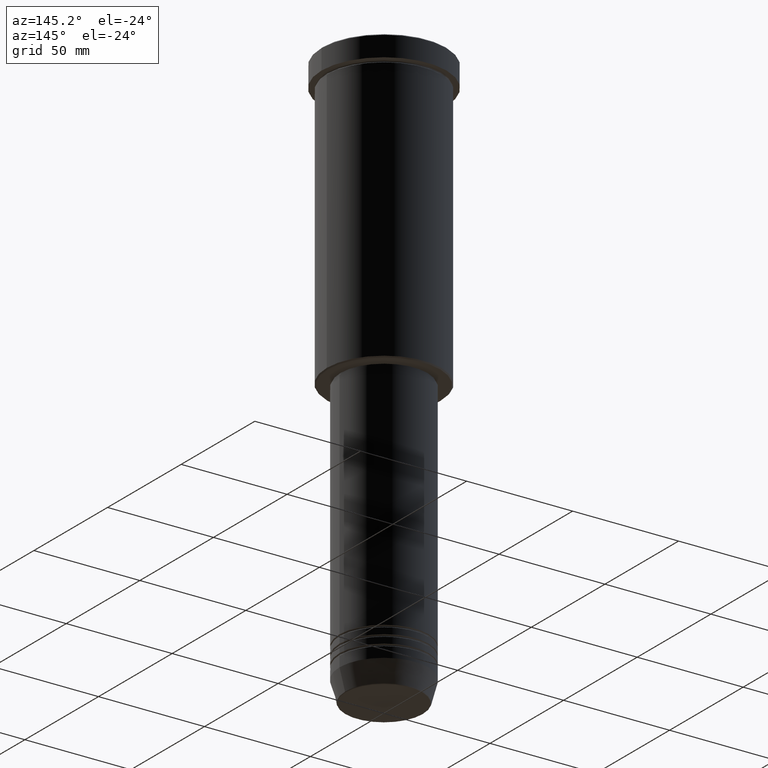
[diagram: clean part render]
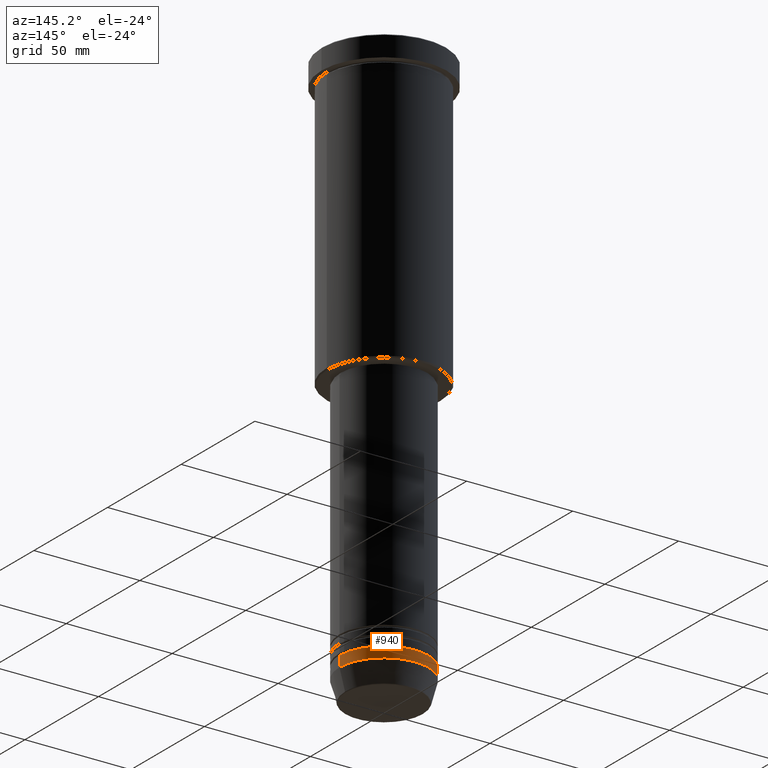
[diagram: same view with one face highlighted and labeled with its STEP entity id]
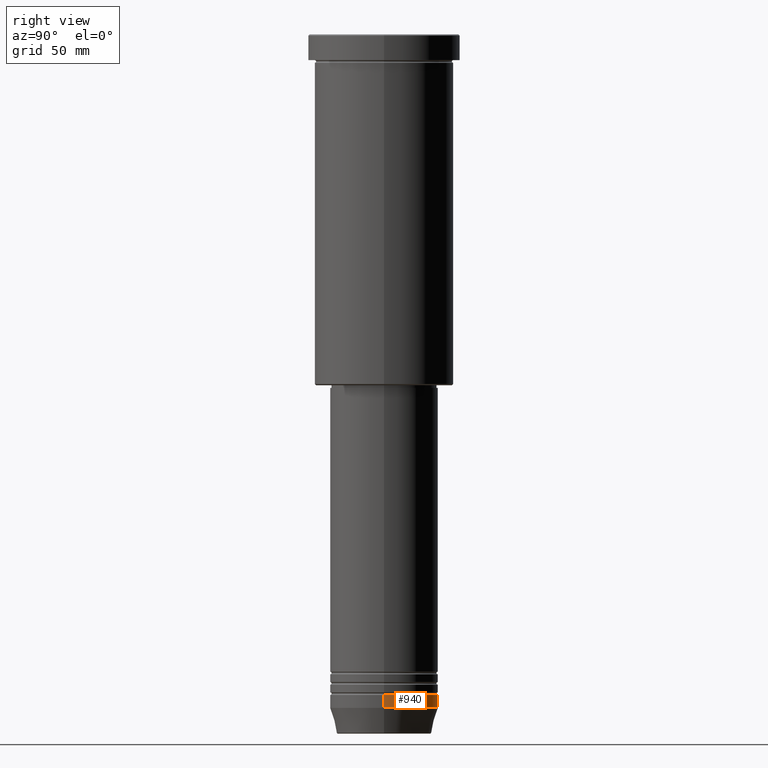
[diagram: same view with one face highlighted and labeled with its STEP entity id]
A machine part, auxiliary view. The second image highlights one B-rep face of the part: STEP entity #940.
A second angle (right view) of the same face is appended — the face is thin or edge-on in the first view.
In plain terms, the highlighted cylindrical surface (partial cylindrical patch) has radius 21 mm, axis along (-0, -0, 1).
Its self-contained STEP definition (entity closure, byte-faithful):
#27 = VECTOR ( 'NONE', #535, 1000.000000000000000 ) ;
#89 = LINE ( 'NONE', #908, #334 ) ;
#96 = DIRECTION ( 'NONE',  ( 1.000000000000000000, 0.000000000000000000, 0.000000000000000000 ) ) ;
#172 = DIRECTION ( 'NONE',  ( 1.000000000000000000, 0.000000000000000000, 0.000000000000000000 ) ) ;
#252 = DIRECTION ( 'NONE',  ( -0.000000000000000000, -0.000000000000000000, 1.000000000000000000 ) ) ;
#330 = ORIENTED_EDGE ( 'NONE', *, *, #771, .F. ) ;
#334 = VECTOR ( 'NONE', #252, 1000.000000000000000 ) ;
#351 = AXIS2_PLACEMENT_3D ( 'NONE', #914, #918, #96 ) ;
#363 = AXIS2_PLACEMENT_3D ( 'NONE', #973, #990, #172 ) ;
#419 = EDGE_CURVE ( 'NONE', #873, #774, #459, .T. ) ;
#447 = VERTEX_POINT ( 'NONE', #862 ) ;
#459 = CIRCLE ( 'NONE', #363, 21.00000000000000000 ) ;
#528 = CARTESIAN_POINT ( 'NONE',  ( -21.00000000000000000, 2.571758278209441661E-15, 0.000000000000000000 ) ) ;
#535 = DIRECTION ( 'NONE',  ( -0.000000000000000000, -0.000000000000000000, 1.000000000000000000 ) ) ;
#647 = CARTESIAN_POINT ( 'NONE',  ( 0.000000000000000000, 0.000000000000000000, -256.0000000000000000 ) ) ;
#653 = DIRECTION ( 'NONE',  ( -0.000000000000000000, -0.000000000000000000, 1.000000000000000000 ) ) ;
#684 = LINE ( 'NONE', #528, #27 ) ;
#701 = EDGE_CURVE ( 'NONE', #774, #833, #684, .T. ) ;
#771 = EDGE_CURVE ( 'NONE', #873, #447, #89, .T. ) ;
#774 = VERTEX_POINT ( 'NONE', #814 ) ;
#781 = ORIENTED_EDGE ( 'NONE', *, *, #701, .T. ) ;
#814 = CARTESIAN_POINT ( 'NONE',  ( -21.00000000000000000, 2.571758278209441661E-15, -261.0000000000000000 ) ) ;
#816 = ORIENTED_EDGE ( 'NONE', *, *, #971, .F. ) ;
#833 = VERTEX_POINT ( 'NONE', #984 ) ;
#862 = CARTESIAN_POINT ( 'NONE',  ( 21.00000000000000000, 0.000000000000000000, -256.0000000000000000 ) ) ;
#873 = VERTEX_POINT ( 'NONE', #1118 ) ;
#908 = CARTESIAN_POINT ( 'NONE',  ( 21.00000000000000000, 0.000000000000000000, 0.000000000000000000 ) ) ;
#914 = CARTESIAN_POINT ( 'NONE',  ( 0.000000000000000000, 0.000000000000000000, 0.000000000000000000 ) ) ;
#918 = DIRECTION ( 'NONE',  ( -0.000000000000000000, -0.000000000000000000, 1.000000000000000000 ) ) ;
#940 = ADVANCED_FACE ( 'NONE', ( #1126 ), #1035, .T. ) ;
#971 = EDGE_CURVE ( 'NONE', #447, #833, #1113, .T. ) ;
#973 = CARTESIAN_POINT ( 'NONE',  ( 0.000000000000000000, 0.000000000000000000, -261.0000000000000000 ) ) ;
#984 = CARTESIAN_POINT ( 'NONE',  ( -21.00000000000000000, 2.571758278209441661E-15, -256.0000000000000000 ) ) ;
#990 = DIRECTION ( 'NONE',  ( -0.000000000000000000, -0.000000000000000000, 1.000000000000000000 ) ) ;
#1016 = DIRECTION ( 'NONE',  ( 1.000000000000000000, 0.000000000000000000, 0.000000000000000000 ) ) ;
#1035 = CYLINDRICAL_SURFACE ( 'NONE', #351, 21.00000000000000000 ) ;
#1037 = ORIENTED_EDGE ( 'NONE', *, *, #419, .T. ) ;
#1093 = AXIS2_PLACEMENT_3D ( 'NONE', #647, #653, #1016 ) ;
#1113 = CIRCLE ( 'NONE', #1093, 21.00000000000000000 ) ;
#1118 = CARTESIAN_POINT ( 'NONE',  ( 21.00000000000000000, 0.000000000000000000, -261.0000000000000000 ) ) ;
#1126 = FACE_OUTER_BOUND ( 'NONE', #1148, .T. ) ;
#1148 = EDGE_LOOP ( 'NONE', ( #1037, #781, #816, #330 ) ) ;